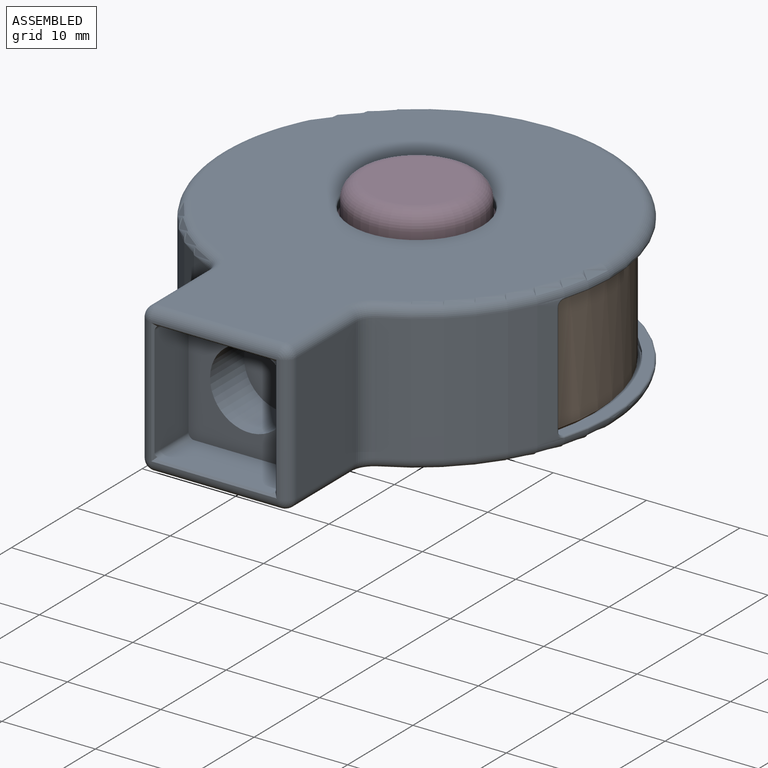
[diagram: assembled view]
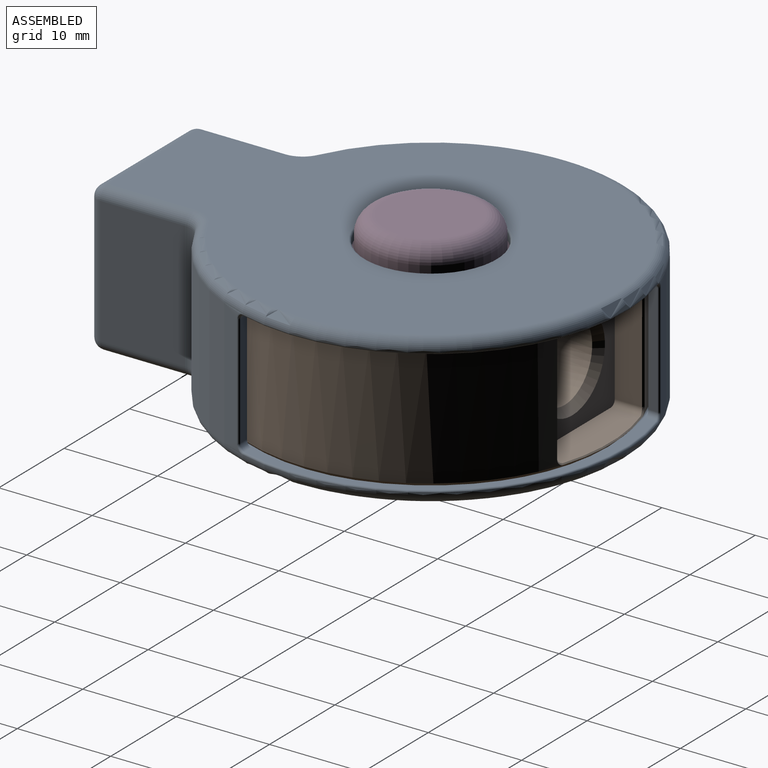
[diagram: assembled view, second angle]
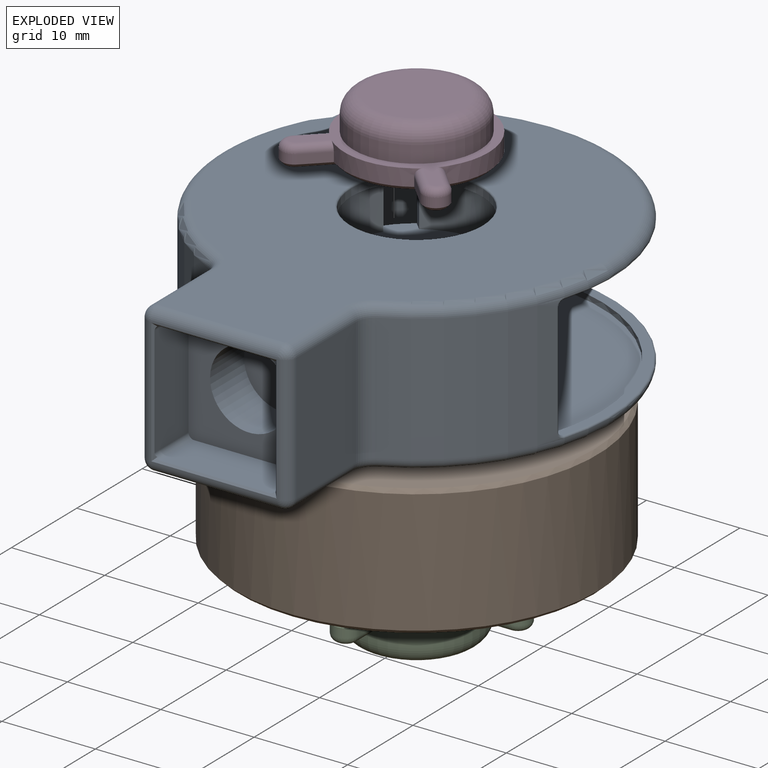
[diagram: exploded view]
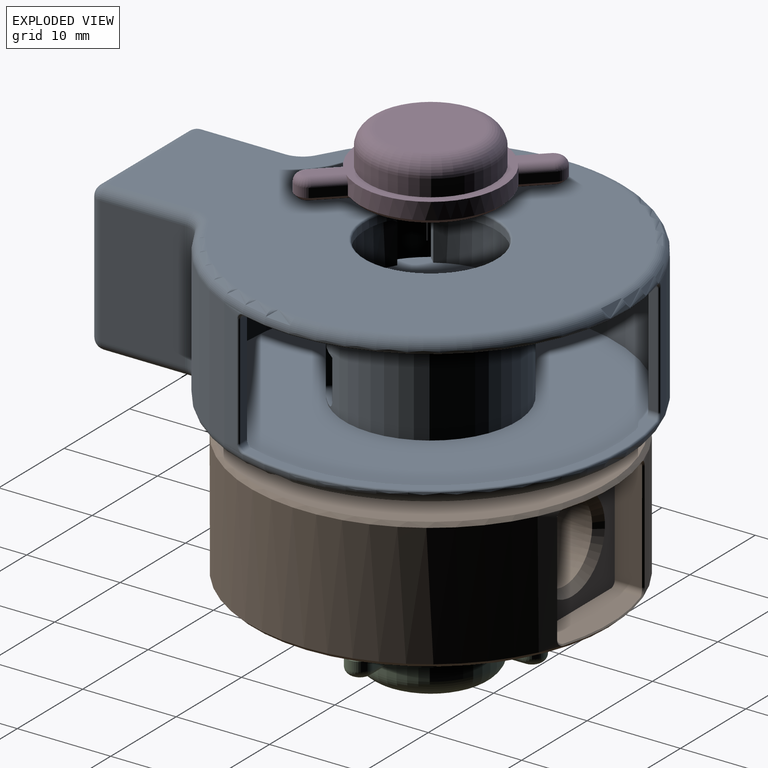
[diagram: exploded view, second angle]
ASSEMBLY  parts=4 mates=5
PART A: 103 faces, bbox 45.5x53.7x16 mm
  f0: cylinder r=21mm len=13.6mm, axis (0,0,-1), area 225.3mm2, adj f63,f74,f79,f87,f88,f89
  f1: cylinder r=8mm len=13.06mm, axis (0,0,1), area 109.8mm2, adj f37,f38,f47,f49,f50,f53
  f2: cylinder r=8mm len=10.13mm, axis (0,0,1), area 47mm2, adj f37,f38,f41,f48,f51,f58
  f3: cylinder r=8mm len=13.06mm, axis (0,0,1), area 109.8mm2, adj f20,f21,f42,f45,f55,f56
  f4: cylinder r=8mm len=10.13mm, axis (0,0,1), area 47mm2, adj f20,f21,f23,f43,f57,f60
  f5: plane 39.6x39.6mm, normal (0,0,1), area 965.7mm2, adj f16,f18
  f6: cylinder r=21mm len=39.02mm, axis (0,0,-1), area 674mm2, adj f62,f74,f79,f82,f83,f84
  f7: plane 13.6x9.09mm, normal (1,0,0), area 123.6mm2, adj f63,f72,f77,f95
  f8: plane 13.6x9.09mm, normal (-1,0,0), area 123.6mm2, adj f62,f76,f81,f96
  f9: plane 13.6x13.6mm, normal (0,-1,0), area 5.4mm2, adj f64,f65,f66,f67,f92,f95,f96,f99
  f10: plane 49.6x39.6mm, normal (0,0,1), area 1211.7mm2, adj f77,f78,f79,f80,f81,f91,f99
  f11: plane 49.6x39.6mm, normal (0,0,-1), area 1211.7mm2, adj f72,f73,f74,f75,f76,f90,f92
  f12: plane 12x0.99mm, normal (0,1,0), area 11.9mm2, adj f16,f25,f27,f89
  f13: plane 12x0.99mm, normal (1,0,0), area 11.9mm2, adj f16,f26,f28,f82
  f14: plane 26.8x26.8mm, normal (0,0,1), area 44.1mm2, adj f16,f27,f28,f85
  f15: plane 26.8x26.8mm, normal (0,0,-1), area 44.1mm2, adj f16,f25,f26,f86
  f16: cylinder r=19.8mm len=39.6mm, axis (0,0,1), area 1203.6mm2, adj f5,f12,f13,f14,f15,f17,f25,f26
  f17: plane 39.6x39.6mm, normal (0,0,-1), area 965.7mm2, adj f16,f18
  f18: cylinder r=9.2mm len=18.4mm, axis (0,0,1), area 737.6mm2, adj f5,f17,f20,f21,f23,f24,f37,f38
  f19: cylinder r=7mm len=14mm, axis (0,0,1), area 35.2mm2, adj f20,f91
  f20: plane 16x16mm, normal (0,0,-1), area 52.9mm2, adj f3,f4,f18,f19,f22,f54,f55,f56
  f21: plane 16x16mm, normal (0,0,1), area 212.6mm2, adj f3,f4,f18,f22,f23,f24,f42,f43
  f22: cylinder r=8mm len=10.13mm, axis (0,0,1), area 47mm2, adj f20,f21,f24,f44,f54,f61
  f23: plane 4.2x0.86mm, normal (-0.71,0.71,0), area 5.1mm2, adj f4,f18,f21,f60
  f24: plane 4.2x0.86mm, normal (0.71,-0.71,0), area 5.1mm2, adj f18,f21,f22,f61
  f25: cylinder r=0.6mm len=1.25mm, axis (-1,0,0), area 1mm2, adj f12,f15,f16,f88
  f26: cylinder r=0.6mm len=1.25mm, axis (0,1,0), area 1mm2, adj f13,f15,f16,f84
  f27: cylinder r=0.6mm len=1.25mm, axis (1,0,0), area 1mm2, adj f12,f14,f16,f87
  f28: cylinder r=0.6mm len=1.25mm, axis (0,-1,0), area 1mm2, adj f13,f14,f16,f83
  f29: plane 11.8x5.2mm, normal (-1,0,0), area 61.4mm2, adj f33,f67,f68,f71
  f30: plane 11.8x5.2mm, normal (0,0,-1), area 61.4mm2, adj f33,f66,f68,f69
  f31: plane 11.8x5.2mm, normal (1,0,0), area 61.4mm2, adj f33,f64,f69,f70
  f32: plane 11.8x5.2mm, normal (0,0,1), area 61.4mm2, adj f33,f65,f70,f71
  f33: plane 13x13mm, normal (0,-1,0), area 113.3mm2, adj f29,f30,f31,f32,f34,f68,f69,f70
  f34: cylinder r=4.2mm len=8.4mm, axis (0,-1,0), area 137.2mm2, adj f33,f35
  f35: plane 8.4x8.4mm, normal (0,-1,0), area 55.4mm2, adj f34
  f36: cylinder r=7mm len=14mm, axis (0,0,-1), area 35.2mm2, adj f37,f90
  f37: plane 16x16mm, normal (0,0,1), area 52.9mm2, adj f1,f2,f18,f36,f39,f50,f51,f52
  f38: plane 16x16mm, normal (0,0,-1), area 212.6mm2, adj f1,f2,f18,f39,f40,f41,f46,f47
  f39: cylinder r=8mm len=10.13mm, axis (0,0,1), area 47mm2, adj f37,f38,f40,f46,f52,f59
  f40: plane 4.2x0.86mm, normal (0.71,-0.71,0), area 5.1mm2, adj f18,f38,f39,f59
  f41: plane 4.2x0.86mm, normal (-0.71,0.71,0), area 5.1mm2, adj f2,f18,f38,f58
  f42: plane 4.2x0.86mm, normal (-0.71,-0.71,0), area 5.1mm2, adj f3,f18,f21,f56
  f43: plane 4.2x0.86mm, normal (0.71,0.71,0), area 5.1mm2, adj f4,f18,f21,f57
  f44: plane 4.2x0.86mm, normal (0.71,0.71,0), area 5.1mm2, adj f18,f21,f22,f54
  f45: plane 4.2x0.86mm, normal (-0.71,-0.71,0), area 5.1mm2, adj f3,f18,f21,f55
  f46: plane 4.2x0.86mm, normal (0.71,0.71,0), area 5.1mm2, adj f18,f38,f39,f52
  f47: plane 4.2x0.86mm, normal (-0.71,-0.71,0), area 5.1mm2, adj f1,f18,f38,f53
  f48: plane 4.2x0.86mm, normal (0.71,0.71,0), area 5.1mm2, adj f2,f18,f38,f51
  f49: plane 4.2x0.86mm, normal (-0.71,-0.71,0), area 5.1mm2, adj f1,f18,f38,f50
  f50: cylinder r=0.8mm len=1.5mm, axis (0.71,-0.71,0), area 1.5mm2, adj f1,f18,f37,f49
  f51: cylinder r=0.8mm len=1.5mm, axis (-0.71,0.71,0), area 1.5mm2, adj f2,f18,f37,f48
  f52: cylinder r=0.8mm len=1.5mm, axis (-0.71,0.71,0), area 1.5mm2, adj f18,f37,f39,f46
  f53: cylinder r=0.8mm len=1.5mm, axis (0.71,-0.71,0), area 1.5mm2, adj f1,f18,f37,f47
  f54: cylinder r=0.8mm len=1.5mm, axis (0.71,-0.71,0), area 1.5mm2, adj f18,f20,f22,f44
  f55: cylinder r=0.8mm len=1.5mm, axis (-0.71,0.71,0), area 1.5mm2, adj f3,f18,f20,f45
  f56: cylinder r=0.8mm len=1.5mm, axis (-0.71,0.71,0), area 1.5mm2, adj f3,f18,f20,f42
  f57: cylinder r=0.8mm len=1.5mm, axis (0.71,-0.71,0), area 1.5mm2, adj f4,f18,f20,f43
  f58: cylinder r=0.8mm len=1.5mm, axis (-0.71,-0.71,0), area 1.5mm2, adj f2,f18,f37,f41
  f59: cylinder r=0.8mm len=1.5mm, axis (0.71,0.71,0), area 1.5mm2, adj f18,f37,f39,f40
  f60: cylinder r=0.8mm len=1.5mm, axis (0.71,0.71,0), area 1.5mm2, adj f4,f18,f20,f23
  f61: cylinder r=0.8mm len=1.5mm, axis (-0.71,-0.71,0), area 1.5mm2, adj f18,f20,f22,f24
  f62: cylinder r=2mm len=13.6mm, axis (0,0,-1), area 30.5mm2, adj f6,f8,f75,f80
  f63: cylinder r=2mm len=13.6mm, axis (0,0,-1), area 30.5mm2, adj f0,f7,f73,f78
  f64: plane 13.4x0.38mm, normal (0.71,-0.71,0), area 3.8mm2, adj f9,f31,f65,f66,f69,f70
  f65: plane 13.4x0.38mm, normal (0,-0.71,0.71), area 3.8mm2, adj f9,f32,f64,f67,f70,f71
  f66: plane 13.4x0.38mm, normal (0,-0.71,-0.71), area 3.8mm2, adj f9,f30,f64,f67,f68,f69
  f67: plane 13.4x0.38mm, normal (-0.71,-0.71,0), area 3.8mm2, adj f9,f29,f65,f66,f68,f71
  f68: cylinder r=0.6mm len=5.2mm, axis (0,1,0), area 4.8mm2, adj f29,f30,f33,f66,f67
  f69: cylinder r=0.6mm len=5.2mm, axis (0,-1,0), area 4.8mm2, adj f30,f31,f33,f64,f66
  f70: cylinder r=0.6mm len=5.2mm, axis (0,1,0), area 4.8mm2, adj f31,f32,f33,f64,f65
  f71: cylinder r=0.6mm len=5.2mm, axis (0,-1,0), area 4.8mm2, adj f29,f32,f33,f65,f67
  f72: cylinder r=1.2mm len=9.09mm, axis (0,1,0), area 17.1mm2, adj f7,f11,f73,f93
  f73: torus R=3.2mm, axis (0,0,1), area 5.1mm2, adj f11,f63,f72,f74
  f74: torus R=19.8mm, axis (0,0,1), area 208.7mm2, adj f0,f6,f11,f73,f75,f85
  f75: torus R=3.2mm, axis (0,0,1), area 5.1mm2, adj f11,f62,f74,f76
  f76: cylinder r=1.2mm len=9.09mm, axis (0,-1,0), area 17.1mm2, adj f8,f11,f75,f94
  f77: cylinder r=1.2mm len=9.09mm, axis (0,-1,0), area 17.1mm2, adj f7,f10,f78,f97
  f78: torus R=3.2mm, axis (0,0,1), area 5.1mm2, adj f10,f63,f77,f79
  f79: torus R=19.8mm, axis (0,0,1), area 208.7mm2, adj f0,f6,f10,f78,f80,f86
  f80: torus R=3.2mm, axis (0,0,1), area 5.1mm2, adj f10,f62,f79,f81
  f81: cylinder r=1.2mm len=9.09mm, axis (0,1,0), area 17.1mm2, adj f8,f10,f80,f98
  f82: cylinder r=0.2mm len=12mm, axis (0,0,-1), area 4.6mm2, adj f6,f13,f83,f84
  f83: bspline ~1x0.97mm, area 0.4mm2, adj f6,f28,f82,f85
  f84: bspline ~1x0.97mm, area 0.4mm2, adj f6,f26,f82,f86
  f85: torus R=20.8mm, axis (0,0,1), area 14.2mm2, adj f14,f74,f83,f87
  f86: torus R=20.8mm, axis (0,0,1), area 14.2mm2, adj f15,f79,f84,f88
  f87: bspline ~1x0.97mm, area 0.4mm2, adj f0,f27,f85,f89
  f88: bspline ~1x0.97mm, area 0.4mm2, adj f0,f25,f86,f89
  f89: cylinder r=0.2mm len=12mm, axis (0,0,-1), area 4.6mm2, adj f0,f12,f87,f88
  f90: torus R=7.2mm, axis (0,0,1), area 14mm2, adj f11,f36
  f91: torus R=7.2mm, axis (0,0,1), area 14mm2, adj f10,f19
  f92: cylinder r=1.2mm len=13.6mm, axis (1,0,0), area 25.6mm2, adj f9,f11,f93,f94
  f93: sphere r=1.2mm, area 2.3mm2, adj f72,f92,f95
  f94: sphere r=1.2mm, area 2.3mm2, adj f76,f92,f96
  f95: cylinder r=1.2mm len=13.6mm, axis (0,0,1), area 25.6mm2, adj f7,f9,f93,f97
  f96: cylinder r=1.2mm len=13.6mm, axis (0,0,-1), area 25.6mm2, adj f8,f9,f94,f98
  f97: sphere r=1.2mm, area 2.3mm2, adj f77,f95,f99
  f98: sphere r=1.2mm, area 2.3mm2, adj f81,f96,f99
  f99: cylinder r=1.2mm len=13.6mm, axis (-1,0,0), area 25.6mm2, adj f9,f10,f97,f98
  f100: plane 12.3x12.3mm, normal (0,0,1), area 118.8mm2, adj f102
  f101: plane 12.3x12.3mm, normal (0,0,-1), area 118.8mm2, adj f102
  f102: cylinder r=6.15mm len=12.3mm, axis (0,0,-1), area 123.7mm2, adj f100,f101
PART B: 201 faces, bbox 38.8x38.8x14 mm
  f0: cylinder r=9.55mm len=19.1mm, axis (0,0,-1), area 222mm2, adj f42,f44,f46,f47,f63,f64,f65,f66
  f1: cylinder r=11.95mm len=1.3mm, axis (0,0,1), area 1.7mm2, adj f44,f46,f103,f141
  f2: plane 1.58x1.49mm, normal (0,0,1), area 1mm2, adj f44,f139,f140,f141
  f3: cylinder r=11.95mm len=2.63mm, axis (0,0,1), area 4mm2, adj f46,f101,f102,f144
  f4: plane 2.18x2.16mm, normal (0,0,1), area 2.6mm2, adj f142,f143,f144,f145
  f5: cylinder r=11.95mm len=3.04mm, axis (0,0,1), area 4mm2, adj f46,f99,f100,f137
  f6: plane 2.02x1.62mm, normal (0,0,1), area 2.6mm2, adj f135,f136,f137,f138
  f7: cylinder r=11.95mm len=2.63mm, axis (0,0,1), area 4mm2, adj f46,f97,f98,f133
  f8: plane 2.18x2.16mm, normal (0,0,1), area 2.6mm2, adj f131,f132,f133,f134
  f9: cylinder r=11.95mm len=2.63mm, axis (0,0,1), area 4mm2, adj f46,f95,f96,f129
  f10: plane 2.18x2.16mm, normal (0,0,1), area 2.6mm2, adj f127,f128,f129,f130
  f11: cylinder r=11.95mm len=3.04mm, axis (0,0,1), area 4mm2, adj f46,f93,f94,f125
  f12: plane 2.02x1.62mm, normal (0,0,1), area 2.6mm2, adj f123,f124,f125,f126
  f13: cylinder r=11.95mm len=2.63mm, axis (0,0,1), area 4mm2, adj f46,f91,f92,f121
  f14: plane 2.18x2.16mm, normal (0,0,1), area 2.6mm2, adj f119,f120,f121,f122
  f15: cylinder r=11.95mm len=2.63mm, axis (0,0,1), area 4mm2, adj f46,f89,f90,f117
  f16: plane 2.18x2.16mm, normal (0,0,1), area 2.6mm2, adj f115,f116,f117,f118
  f17: cylinder r=11.95mm len=3.04mm, axis (0,0,1), area 4mm2, adj f46,f87,f88,f113
  f18: plane 2.02x1.62mm, normal (0,0,1), area 2.6mm2, adj f111,f112,f113,f114
  f19: cylinder r=11.95mm len=2.63mm, axis (0,0,1), area 4mm2, adj f46,f85,f86,f109
  f20: plane 2.18x2.16mm, normal (0,0,1), area 2.6mm2, adj f107,f108,f109,f110
  f21: cylinder r=11.95mm len=2.63mm, axis (0,0,1), area 4mm2, adj f47,f79,f82,f166
  f22: plane 2.18x2.16mm, normal (0,0,-1), area 2.6mm2, adj f164,f165,f166,f167
  f23: cylinder r=11.95mm len=3.04mm, axis (0,0,1), area 4mm2, adj f47,f77,f80,f170
  f24: plane 2.02x1.62mm, normal (0,0,-1), area 2.6mm2, adj f168,f169,f170,f171
  f25: cylinder r=11.95mm len=2.63mm, axis (0,0,1), area 4mm2, adj f47,f75,f78,f174
  f26: plane 2.18x2.16mm, normal (0,0,-1), area 2.6mm2, adj f172,f173,f174,f175
  f27: cylinder r=11.95mm len=2.63mm, axis (0,0,1), area 4mm2, adj f47,f73,f76,f178
  f28: plane 2.18x2.16mm, normal (0,0,-1), area 2.6mm2, adj f176,f177,f178,f179
  f29: cylinder r=11.95mm len=3.04mm, axis (0,0,1), area 4mm2, adj f47,f71,f74,f186
  f30: plane 2.02x1.62mm, normal (0,0,-1), area 2.6mm2, adj f184,f185,f186,f187
  f31: cylinder r=11.95mm len=2.63mm, axis (0,0,1), area 4mm2, adj f47,f69,f72,f182
  f32: plane 2.18x2.16mm, normal (0,0,-1), area 2.6mm2, adj f180,f181,f182,f183
  f33: cylinder r=11.95mm len=2.63mm, axis (0,0,1), area 4mm2, adj f47,f67,f70,f159
  f34: plane 2.18x2.16mm, normal (0,0,-1), area 2.6mm2, adj f157,f158,f159,f160
  f35: cylinder r=11.95mm len=3.04mm, axis (0,0,1), area 4mm2, adj f47,f65,f68,f155
  f36: plane 2.02x1.62mm, normal (0,0,-1), area 2.6mm2, adj f153,f154,f155,f156
  f37: cylinder r=11.95mm len=2.63mm, axis (0,0,1), area 4mm2, adj f47,f63,f66,f151
  f38: plane 2.18x2.16mm, normal (0,0,-1), area 2.6mm2, adj f149,f150,f151,f152
  f39: cylinder r=11.95mm len=1.3mm, axis (0,0,1), area 1.7mm2, adj f42,f47,f64,f148
  f40: plane 1.58x1.49mm, normal (0,0,-1), area 1mm2, adj f42,f146,f147,f148
  f41: cylinder r=11.95mm len=1.3mm, axis (0,0,1), area 1.7mm2, adj f42,f46,f84,f106
  f42: plane 12.4x7.41mm, normal (0.86,-0.52,0), area 99.4mm2, adj f0,f39,f40,f41,f45,f46,f47,f83
  f43: cylinder r=11.95mm len=1.3mm, axis (0,0,1), area 1.7mm2, adj f44,f47,f81,f163
  f44: plane 12.4x7.41mm, normal (-0.86,-0.52,0), area 99.4mm2, adj f0,f1,f2,f43,f45,f46,f47,f48
  f45: cylinder r=18.2mm len=36.4mm, axis (0,0,1), area 1173mm2, adj f42,f44,f46,f47
  f46: plane 36.4x33.78mm, normal (0,0,1), area 566.8mm2, adj f0,f1,f3,f5,f7,f9,f11,f13
  f47: plane 36.4x33.78mm, normal (0,0,-1), area 566.8mm2, adj f0,f21,f23,f25,f27,f29,f31,f33
  f48: plane 1.58x1.49mm, normal (0,0,-1), area 1mm2, adj f44,f161,f162,f163
  f49: cylinder r=19.4mm len=38.8mm, axis (0,0,-1), area 1429.4mm2, adj f191,f192,f193,f194,f195,f198,f199,f200
  f50: plane 38x38mm, normal (0,0,1), area 823.1mm2, adj f190,f192
  f51: plane 38x38mm, normal (0,0,-1), area 823.1mm2, adj f189,f191
  f52: plane 11.8x2.93mm, normal (1,0,0), area 34.5mm2, adj f53,f59,f61,f193
  f53: plane 13x13mm, normal (0,1,0), area 90.2mm2, adj f52,f54,f55,f56,f59,f60,f61,f62
  f54: plane 11.8x2.93mm, normal (-1,0,0), area 34.5mm2, adj f53,f60,f62,f200
  f55: plane 11.8x4.11mm, normal (0,0,1), area 44.9mm2, adj f53,f61,f62,f196
  f56: plane 11.8x4.11mm, normal (0,0,-1), area 44.9mm2, adj f53,f59,f60,f197
  f57: cylinder r=4.2mm len=8.4mm, axis (0,1,0), area 116.1mm2, adj f58,f188
  f58: plane 8.4x8.4mm, normal (0,1,0), area 55.4mm2, adj f57
  f59: cylinder r=0.6mm len=3.18mm, axis (0,1,0), area 2.9mm2, adj f52,f53,f56,f195
  f60: cylinder r=0.6mm len=3.18mm, axis (0,-1,0), area 2.9mm2, adj f53,f54,f56,f199
  f61: cylinder r=0.6mm len=3.18mm, axis (0,-1,0), area 2.9mm2, adj f52,f53,f55,f194
  f62: cylinder r=0.6mm len=3.18mm, axis (0,1,0), area 2.9mm2, adj f53,f54,f55,f198
  f63: plane 1.72x1.72mm, normal (-0.71,0.71,0), area 3.2mm2, adj f0,f37,f47,f149
  f64: plane 1.72x1.72mm, normal (0.71,-0.71,0), area 3.2mm2, adj f0,f39,f47,f147
  f65: plane 2.34x1.3mm, normal (-0.26,0.97,0), area 3.2mm2, adj f0,f35,f47,f153
  f66: plane 2.34x1.3mm, normal (0.26,-0.97,0), area 3.2mm2, adj f0,f37,f47,f152
  f67: plane 2.34x1.3mm, normal (0.26,0.97,0), area 3.2mm2, adj f0,f33,f47,f157
  f68: plane 2.34x1.3mm, normal (-0.26,-0.97,0), area 3.2mm2, adj f0,f35,f47,f156
  f69: plane 1.72x1.72mm, normal (0.71,0.71,0), area 3.2mm2, adj f0,f31,f47,f180
  f70: plane 1.72x1.72mm, normal (-0.71,-0.71,0), area 3.2mm2, adj f0,f33,f47,f160
  f71: plane 2.34x1.3mm, normal (0.97,0.26,0), area 3.2mm2, adj f0,f29,f47,f184
  f72: plane 2.34x1.3mm, normal (-0.97,-0.26,0), area 3.2mm2, adj f0,f31,f47,f183
  f73: plane 2.34x1.3mm, normal (0.97,-0.26,0), area 3.2mm2, adj f0,f27,f47,f176
  f74: plane 2.34x1.3mm, normal (-0.97,0.26,0), area 3.2mm2, adj f0,f29,f47,f187
  f75: plane 1.72x1.72mm, normal (0.71,-0.71,0), area 3.2mm2, adj f0,f25,f47,f172
  f76: plane 1.72x1.72mm, normal (-0.71,0.71,0), area 3.2mm2, adj f0,f27,f47,f179
  f77: plane 2.34x1.3mm, normal (0.26,-0.97,0), area 3.2mm2, adj f0,f23,f47,f168
  f78: plane 2.34x1.3mm, normal (-0.26,0.97,0), area 3.2mm2, adj f0,f25,f47,f175
  f79: plane 2.34x1.3mm, normal (-0.26,-0.97,0), area 3.2mm2, adj f0,f21,f47,f164
  f80: plane 2.34x1.3mm, normal (0.26,0.97,0), area 3.2mm2, adj f0,f23,f47,f171
  f81: plane 1.72x1.72mm, normal (-0.71,-0.71,0), area 3.2mm2, adj f0,f43,f47,f162
  f82: plane 1.72x1.72mm, normal (0.71,0.71,0), area 3.2mm2, adj f0,f21,f47,f167
  f83: plane 1.58x1.49mm, normal (0,0,1), area 1mm2, adj f42,f104,f105,f106
  f84: plane 1.72x1.72mm, normal (0.71,-0.71,0), area 3.2mm2, adj f0,f41,f46,f105
  f85: plane 1.72x1.72mm, normal (-0.71,0.71,0), area 3.2mm2, adj f0,f19,f46,f107
  f86: plane 2.34x1.3mm, normal (0.26,-0.97,0), area 3.2mm2, adj f0,f19,f46,f110
  f87: plane 2.34x1.3mm, normal (-0.26,0.97,0), area 3.2mm2, adj f0,f17,f46,f111
  f88: plane 2.34x1.3mm, normal (-0.26,-0.97,0), area 3.2mm2, adj f0,f17,f46,f114
  f89: plane 2.34x1.3mm, normal (0.26,0.97,0), area 3.2mm2, adj f0,f15,f46,f115
  f90: plane 1.72x1.72mm, normal (-0.71,-0.71,0), area 3.2mm2, adj f0,f15,f46,f118
  f91: plane 1.72x1.72mm, normal (0.71,0.71,0), area 3.2mm2, adj f0,f13,f46,f119
  f92: plane 2.34x1.3mm, normal (-0.97,-0.26,0), area 3.2mm2, adj f0,f13,f46,f122
  f93: plane 2.34x1.3mm, normal (0.97,0.26,0), area 3.2mm2, adj f0,f11,f46,f123
  f94: plane 2.34x1.3mm, normal (-0.97,0.26,0), area 3.2mm2, adj f0,f11,f46,f126
  f95: plane 2.34x1.3mm, normal (0.97,-0.26,0), area 3.2mm2, adj f0,f9,f46,f127
  f96: plane 1.72x1.72mm, normal (-0.71,0.71,0), area 3.2mm2, adj f0,f9,f46,f130
  f97: plane 1.72x1.72mm, normal (0.71,-0.71,0), area 3.2mm2, adj f0,f7,f46,f131
  f98: plane 2.34x1.3mm, normal (-0.26,0.97,0), area 3.2mm2, adj f0,f7,f46,f134
  f99: plane 2.34x1.3mm, normal (0.26,-0.97,0), area 3.2mm2, adj f0,f5,f46,f135
  f100: plane 2.34x1.3mm, normal (0.26,0.97,0), area 3.2mm2, adj f0,f5,f46,f138
  f101: plane 2.34x1.3mm, normal (-0.26,-0.97,0), area 3.2mm2, adj f0,f3,f46,f142
  f102: plane 1.72x1.72mm, normal (0.71,0.71,0), area 3.2mm2, adj f0,f3,f46,f145
  f103: plane 1.72x1.72mm, normal (-0.71,-0.71,0), area 3.2mm2, adj f0,f1,f46,f140
  f104: cone r=9.55mm half-angle=45deg, axis (0,0,1), area 0.3mm2, adj f0,f42,f83,f105
  f105: plane 1.77x1.72mm, normal (0.5,-0.5,0.71), area 1.1mm2, adj f83,f84,f104,f106
  f106: cone r=11.55mm half-angle=45deg, axis (0,0,-1), area 0.6mm2, adj f41,f42,f83,f105
  f107: plane 1.77x1.72mm, normal (-0.5,0.5,0.71), area 1.1mm2, adj f20,f85,f108,f109
  f108: cone r=9.55mm half-angle=45deg, axis (0,0,1), area 0.8mm2, adj f0,f20,f107,f110
  f109: cone r=11.55mm half-angle=45deg, axis (0,0,-1), area 1.4mm2, adj f19,f20,f107,f110
  f110: plane 2.35x0.9mm, normal (0.18,-0.68,0.71), area 1.1mm2, adj f20,f86,f108,f109
  f111: plane 2.35x0.94mm, normal (-0.18,0.68,0.71), area 1.1mm2, adj f18,f87,f112,f113
  f112: cone r=9.55mm half-angle=45deg, axis (0,0,1), area 0.8mm2, adj f0,f18,f111,f114
  f113: cone r=11.55mm half-angle=45deg, axis (0,0,-1), area 1.4mm2, adj f17,f18,f111,f114
  f114: plane 2.35x0.94mm, normal (-0.18,-0.68,0.71), area 1.1mm2, adj f18,f88,f112,f113
  f115: plane 2.35x0.9mm, normal (0.18,0.68,0.71), area 1.1mm2, adj f16,f89,f116,f117
  f116: cone r=9.55mm half-angle=45deg, axis (0,0,1), area 0.8mm2, adj f0,f16,f115,f118
  f117: cone r=11.55mm half-angle=45deg, axis (0,0,-1), area 1.4mm2, adj f15,f16,f115,f118
  f118: plane 1.77x1.72mm, normal (-0.5,-0.5,0.71), area 1.1mm2, adj f16,f90,f116,f117
  f119: plane 1.77x1.72mm, normal (0.5,0.5,0.71), area 1.1mm2, adj f14,f91,f120,f121
  f120: cone r=9.55mm half-angle=45deg, axis (0,0,1), area 0.8mm2, adj f0,f14,f119,f122
  f121: cone r=11.55mm half-angle=45deg, axis (0,0,-1), area 1.4mm2, adj f13,f14,f119,f122
  f122: plane 2.35x0.9mm, normal (-0.68,-0.18,0.71), area 1.1mm2, adj f14,f92,f120,f121
  f123: plane 2.35x0.94mm, normal (0.68,0.18,0.71), area 1.1mm2, adj f12,f93,f124,f125
  f124: cone r=9.55mm half-angle=45deg, axis (0,0,1), area 0.8mm2, adj f0,f12,f123,f126
  f125: cone r=11.55mm half-angle=45deg, axis (0,0,-1), area 1.4mm2, adj f11,f12,f123,f126
  f126: plane 2.35x0.94mm, normal (-0.68,0.18,0.71), area 1.1mm2, adj f12,f94,f124,f125
  f127: plane 2.35x0.9mm, normal (0.68,-0.18,0.71), area 1.1mm2, adj f10,f95,f128,f129
  f128: cone r=9.55mm half-angle=45deg, axis (0,0,1), area 0.8mm2, adj f0,f10,f127,f130
  f129: cone r=11.55mm half-angle=45deg, axis (0,0,-1), area 1.4mm2, adj f9,f10,f127,f130
  f130: plane 1.77x1.72mm, normal (-0.5,0.5,0.71), area 1.1mm2, adj f10,f96,f128,f129
  f131: plane 1.77x1.72mm, normal (0.5,-0.5,0.71), area 1.1mm2, adj f8,f97,f132,f133
  f132: cone r=9.55mm half-angle=45deg, axis (0,0,1), area 0.8mm2, adj f0,f8,f131,f134
  f133: cone r=11.55mm half-angle=45deg, axis (0,0,-1), area 1.4mm2, adj f7,f8,f131,f134
  f134: plane 2.35x0.9mm, normal (-0.18,0.68,0.71), area 1.1mm2, adj f8,f98,f132,f133
  f135: plane 2.35x0.94mm, normal (0.18,-0.68,0.71), area 1.1mm2, adj f6,f99,f136,f137
  f136: cone r=9.55mm half-angle=45deg, axis (0,0,1), area 0.8mm2, adj f0,f6,f135,f138
  f137: cone r=11.55mm half-angle=45deg, axis (0,0,-1), area 1.4mm2, adj f5,f6,f135,f138
  f138: plane 2.35x0.94mm, normal (0.18,0.68,0.71), area 1.1mm2, adj f6,f100,f136,f137
  f139: cone r=9.55mm half-angle=45deg, axis (0,0,1), area 0.3mm2, adj f0,f2,f44,f140
  f140: plane 1.77x1.72mm, normal (-0.5,-0.5,0.71), area 1.1mm2, adj f2,f103,f139,f141
  f141: cone r=11.55mm half-angle=45deg, axis (0,0,-1), area 0.6mm2, adj f1,f2,f44,f140
  f142: plane 2.35x0.9mm, normal (-0.18,-0.68,0.71), area 1.1mm2, adj f4,f101,f143,f144
  f143: cone r=9.55mm half-angle=45deg, axis (0,0,1), area 0.8mm2, adj f0,f4,f142,f145
  f144: cone r=11.55mm half-angle=45deg, axis (0,0,-1), area 1.4mm2, adj f3,f4,f142,f145
  f145: plane 1.77x1.72mm, normal (0.5,0.5,0.71), area 1.1mm2, adj f4,f102,f143,f144
  f146: cone r=9.95mm half-angle=45deg, axis (0,0,-1), area 0.3mm2, adj f0,f40,f42,f147
  f147: plane 1.77x1.72mm, normal (0.5,-0.5,-0.71), area 1.1mm2, adj f40,f64,f146,f148
  f148: cone r=11.55mm half-angle=45deg, axis (0,0,1), area 0.6mm2, adj f39,f40,f42,f147
  f149: plane 1.77x1.72mm, normal (-0.5,0.5,-0.71), area 1.1mm2, adj f38,f63,f150,f151
  f150: cone r=9.95mm half-angle=45deg, axis (0,0,-1), area 0.8mm2, adj f0,f38,f149,f152
  f151: cone r=11.55mm half-angle=45deg, axis (0,0,1), area 1.4mm2, adj f37,f38,f149,f152
  f152: plane 2.35x0.9mm, normal (0.18,-0.68,-0.71), area 1.1mm2, adj f38,f66,f150,f151
  f153: plane 2.35x0.94mm, normal (-0.18,0.68,-0.71), area 1.1mm2, adj f36,f65,f154,f155
  f154: cone r=9.95mm half-angle=45deg, axis (0,0,-1), area 0.8mm2, adj f0,f36,f153,f156
  f155: cone r=11.55mm half-angle=45deg, axis (0,0,1), area 1.4mm2, adj f35,f36,f153,f156
  f156: plane 2.35x0.94mm, normal (-0.18,-0.68,-0.71), area 1.1mm2, adj f36,f68,f154,f155
  f157: plane 2.35x0.9mm, normal (0.18,0.68,-0.71), area 1.1mm2, adj f34,f67,f158,f159
  f158: cone r=9.95mm half-angle=45deg, axis (0,0,-1), area 0.8mm2, adj f0,f34,f157,f160
  f159: cone r=11.55mm half-angle=45deg, axis (0,0,1), area 1.4mm2, adj f33,f34,f157,f160
  f160: plane 1.77x1.72mm, normal (-0.5,-0.5,-0.71), area 1.1mm2, adj f34,f70,f158,f159
  f161: cone r=9.95mm half-angle=45deg, axis (0,0,-1), area 0.3mm2, adj f0,f44,f48,f162
  f162: plane 1.77x1.72mm, normal (-0.5,-0.5,-0.71), area 1.1mm2, adj f48,f81,f161,f163
  f163: cone r=11.55mm half-angle=45deg, axis (0,0,1), area 0.6mm2, adj f43,f44,f48,f162
  f164: plane 2.35x0.9mm, normal (-0.18,-0.68,-0.71), area 1.1mm2, adj f22,f79,f165,f166
  f165: cone r=9.95mm half-angle=45deg, axis (0,0,-1), area 0.8mm2, adj f0,f22,f164,f167
  f166: cone r=11.55mm half-angle=45deg, axis (0,0,1), area 1.4mm2, adj f21,f22,f164,f167
  f167: plane 1.77x1.72mm, normal (0.5,0.5,-0.71), area 1.1mm2, adj f22,f82,f165,f166
  f168: plane 2.35x0.94mm, normal (0.18,-0.68,-0.71), area 1.1mm2, adj f24,f77,f169,f170
  f169: cone r=9.95mm half-angle=45deg, axis (0,0,-1), area 0.8mm2, adj f0,f24,f168,f171
  f170: cone r=11.55mm half-angle=45deg, axis (0,0,1), area 1.4mm2, adj f23,f24,f168,f171
  f171: plane 2.35x0.94mm, normal (0.18,0.68,-0.71), area 1.1mm2, adj f24,f80,f169,f170
  f172: plane 1.77x1.72mm, normal (0.5,-0.5,-0.71), area 1.1mm2, adj f26,f75,f173,f174
  f173: cone r=9.95mm half-angle=45deg, axis (0,0,-1), area 0.8mm2, adj f0,f26,f172,f175
  f174: cone r=11.55mm half-angle=45deg, axis (0,0,1), area 1.4mm2, adj f25,f26,f172,f175
  f175: plane 2.35x0.9mm, normal (-0.18,0.68,-0.71), area 1.1mm2, adj f26,f78,f173,f174
  f176: plane 2.35x0.9mm, normal (0.68,-0.18,-0.71), area 1.1mm2, adj f28,f73,f177,f178
  f177: cone r=9.95mm half-angle=45deg, axis (0,0,-1), area 0.8mm2, adj f0,f28,f176,f179
  f178: cone r=11.55mm half-angle=45deg, axis (0,0,1), area 1.4mm2, adj f27,f28,f176,f179
  f179: plane 1.77x1.72mm, normal (-0.5,0.5,-0.71), area 1.1mm2, adj f28,f76,f177,f178
  f180: plane 1.77x1.72mm, normal (0.5,0.5,-0.71), area 1.1mm2, adj f32,f69,f181,f182
  f181: cone r=9.95mm half-angle=45deg, axis (0,0,-1), area 0.8mm2, adj f0,f32,f180,f183
  f182: cone r=11.55mm half-angle=45deg, axis (0,0,1), area 1.4mm2, adj f31,f32,f180,f183
  f183: plane 2.35x0.9mm, normal (-0.68,-0.18,-0.71), area 1.1mm2, adj f32,f72,f181,f182
  f184: plane 2.35x0.94mm, normal (0.68,0.18,-0.71), area 1.1mm2, adj f30,f71,f185,f186
  f185: cone r=9.95mm half-angle=45deg, axis (0,0,-1), area 0.8mm2, adj f0,f30,f184,f187
  f186: cone r=11.55mm half-angle=45deg, axis (0,0,1), area 1.4mm2, adj f29,f30,f184,f187
  f187: plane 2.35x0.94mm, normal (-0.68,0.18,-0.71), area 1.1mm2, adj f30,f74,f185,f186
  f188: cone r=4.2mm half-angle=45deg, axis (0,1,0), area 32.7mm2, adj f53,f57
  f189: cone r=9.95mm half-angle=45deg, axis (0,0,-1), area 34.7mm2, adj f0,f51
  f190: cone r=9.55mm half-angle=45deg, axis (0,0,1), area 34.7mm2, adj f0,f50
  f191: cone r=19.4mm half-angle=45deg, axis (0,0,1), area 67.9mm2, adj f49,f51,f194,f196,f198
  f192: cone r=19mm half-angle=45deg, axis (0,0,-1), area 67.9mm2, adj f49,f50,f195,f197,f199
  f193: plane 11.8x0.19mm, normal (0.57,0.82,0), area 2.7mm2, adj f49,f52,f194,f195
  f194: bspline ~0.79x0.74mm, area 0.2mm2, adj f49,f61,f191,f193,f196
  f195: bspline ~0.8x0.75mm, area 0.2mm2, adj f49,f59,f192,f193,f197
  f196: cone r=19.26mm half-angle=45deg, axis (0,0,-1), area 2.1mm2, adj f55,f191,f194,f198
  f197: cone r=19.4mm half-angle=45deg, axis (0,0,1), area 2.1mm2, adj f56,f192,f195,f199
  f198: bspline ~0.8x0.75mm, area 0.2mm2, adj f49,f62,f191,f196,f200
  f199: bspline ~0.79x0.74mm, area 0.2mm2, adj f49,f60,f192,f197,f200
  f200: plane 11.8x0.19mm, normal (-0.57,0.82,0), area 2.7mm2, adj f49,f54,f198,f199
PART C: 40 faces, bbox 20x24.5x5.8 mm
  f0: plane 3.28x1mm, normal (0,-1,0), area 3.3mm2, adj f6,f16,f21,f31
  f1: plane 3.28x1mm, normal (1,0,0), area 3.3mm2, adj f6,f15,f18,f35
  f2: plane 3.28x1mm, normal (-1,0,0), area 3.3mm2, adj f8,f17,f26,f34
  f3: plane 3.28x1mm, normal (-1,0,0), area 3.3mm2, adj f8,f15,f20,f38
  f4: plane 3.28x1mm, normal (1,0,0), area 3.3mm2, adj f7,f17,f24,f30
  f5: plane 3.28x1mm, normal (0,1,0), area 3.3mm2, adj f7,f16,f23,f27
  f6: cylinder r=7.7mm len=7.08mm, axis (0,0,1), area 17mm2, adj f0,f1,f14,f18,f21,f33
  f7: cylinder r=7.7mm len=7.08mm, axis (0,0,1), area 17mm2, adj f4,f5,f14,f23,f24,f28
  f8: cylinder r=7.7mm len=15.35mm, axis (0,0,1), area 38.8mm2, adj f2,f3,f14,f20,f26,f36
  f9: cylinder r=6.75mm len=13.5mm, axis (0,0,-1), area 76.3mm2, adj f14,f39
  f10: plane 9.9x9.9mm, normal (0,0,1), area 77mm2, adj f39
  f11: plane 23.7x19.15mm, normal (0,0,-1), area 74.7mm2, adj f12,f27,f28,f29,f30,f31,f32,f33
  f12: cylinder r=6.15mm len=12.3mm, axis (0,0,-1), area 139.1mm2, adj f11,f13
  f13: plane 12.3x12.3mm, normal (0,0,-1), area 118.8mm2, adj f12
  f14: plane 22.9x19.15mm, normal (0,0,1), area 56.2mm2, adj f6,f7,f8,f9,f18,f19,f20,f21
  f15: cylinder r=1.4mm len=2.8mm, axis (0,0,1), area 4.4mm2, adj f1,f3,f19,f37
  f16: cylinder r=1.4mm len=2.8mm, axis (0,0,1), area 4.4mm2, adj f0,f5,f22,f29
  f17: cylinder r=1.4mm len=2.8mm, axis (0,0,1), area 4.4mm2, adj f2,f4,f25,f32
  f18: cylinder r=0.8mm len=3.28mm, axis (0,1,0), area 4.1mm2, adj f1,f6,f14,f19
  f19: torus R=0.6mm, axis (0,0,1), area 4.4mm2, adj f14,f15,f18,f20
  f20: cylinder r=0.8mm len=3.28mm, axis (0,-1,0), area 4.1mm2, adj f3,f8,f14,f19
  f21: cylinder r=0.8mm len=3.28mm, axis (1,0,0), area 4.1mm2, adj f0,f6,f14,f22
  f22: torus R=0.6mm, axis (0,0,1), area 4.4mm2, adj f14,f16,f21,f23
  f23: cylinder r=0.8mm len=3.28mm, axis (-1,0,0), area 4.1mm2, adj f5,f7,f14,f22
  f24: cylinder r=0.8mm len=3.28mm, axis (0,1,0), area 4.1mm2, adj f4,f7,f14,f25
  f25: torus R=0.6mm, axis (0,0,1), area 4.4mm2, adj f14,f17,f24,f26
  f26: cylinder r=0.8mm len=3.28mm, axis (0,-1,0), area 4.1mm2, adj f2,f8,f14,f25
  f27: plane 3.63x0.41mm, normal (0,0.71,-0.71), area 2mm2, adj f5,f11,f28,f29
  f28: cone r=7.3mm half-angle=45deg, axis (0,0,1), area 5.3mm2, adj f7,f11,f27,f30
  f29: cone r=1mm half-angle=45deg, axis (0,0,1), area 2.1mm2, adj f11,f16,f27,f31
  f30: plane 3.63x0.41mm, normal (0.71,0,-0.71), area 2mm2, adj f4,f11,f28,f32
  f31: plane 3.63x0.41mm, normal (0,-0.71,-0.71), area 2mm2, adj f0,f11,f29,f33
  f32: cone r=1mm half-angle=45deg, axis (0,0,1), area 2.1mm2, adj f11,f17,f30,f34
  f33: cone r=7.3mm half-angle=45deg, axis (0,0,1), area 5.3mm2, adj f6,f11,f31,f35
  f34: plane 3.63x0.41mm, normal (-0.71,0,-0.71), area 2mm2, adj f2,f11,f32,f36
  f35: plane 3.63x0.41mm, normal (0.71,0,-0.71), area 2mm2, adj f1,f11,f33,f37
  f36: cone r=7.3mm half-angle=45deg, axis (0,0,1), area 12mm2, adj f8,f11,f34,f38
  f37: cone r=1mm half-angle=45deg, axis (0,0,1), area 2.1mm2, adj f11,f15,f35,f38
  f38: plane 3.63x0.41mm, normal (-0.71,0,-0.71), area 2mm2, adj f3,f11,f36,f37
  f39: torus R=4.95mm, axis (0,0,1), area 108.3mm2, adj f9,f10
PART D: same geometry as C
PLACE A t=(-19.25,3.79,6.86)mm fixed
PLACE B t=(-19.25,3.79,7.86)mm
PLACE C rot(axis=(1,0,0),180deg) t=(-19.25,3.79,9.26)mm
PLACE D rot(axis=(0,0,-1),136.1deg) t=(-19.25,3.79,20.46)mm
MATE cylindrical D.f6 <-> A.f0  axis (0,0,-1) through (-19.25,3.79,21.66)mm
MATE cylindrical C.f6 <-> A.f0  axis (0,0,1) through (-19.25,3.79,7.16)mm
MATE planar A.f0 <-> C.f6  axis (0,0,1) through (-19.25,3.79,7.86)mm
MATE planar A.f0 <-> D.f6  axis (0,0,-1) through (-19.25,3.79,21.86)mm
MATE cylindrical B.f0 <-> A.f0  axis (0,0,-1) through (-19.25,3.79,14.86)mm
